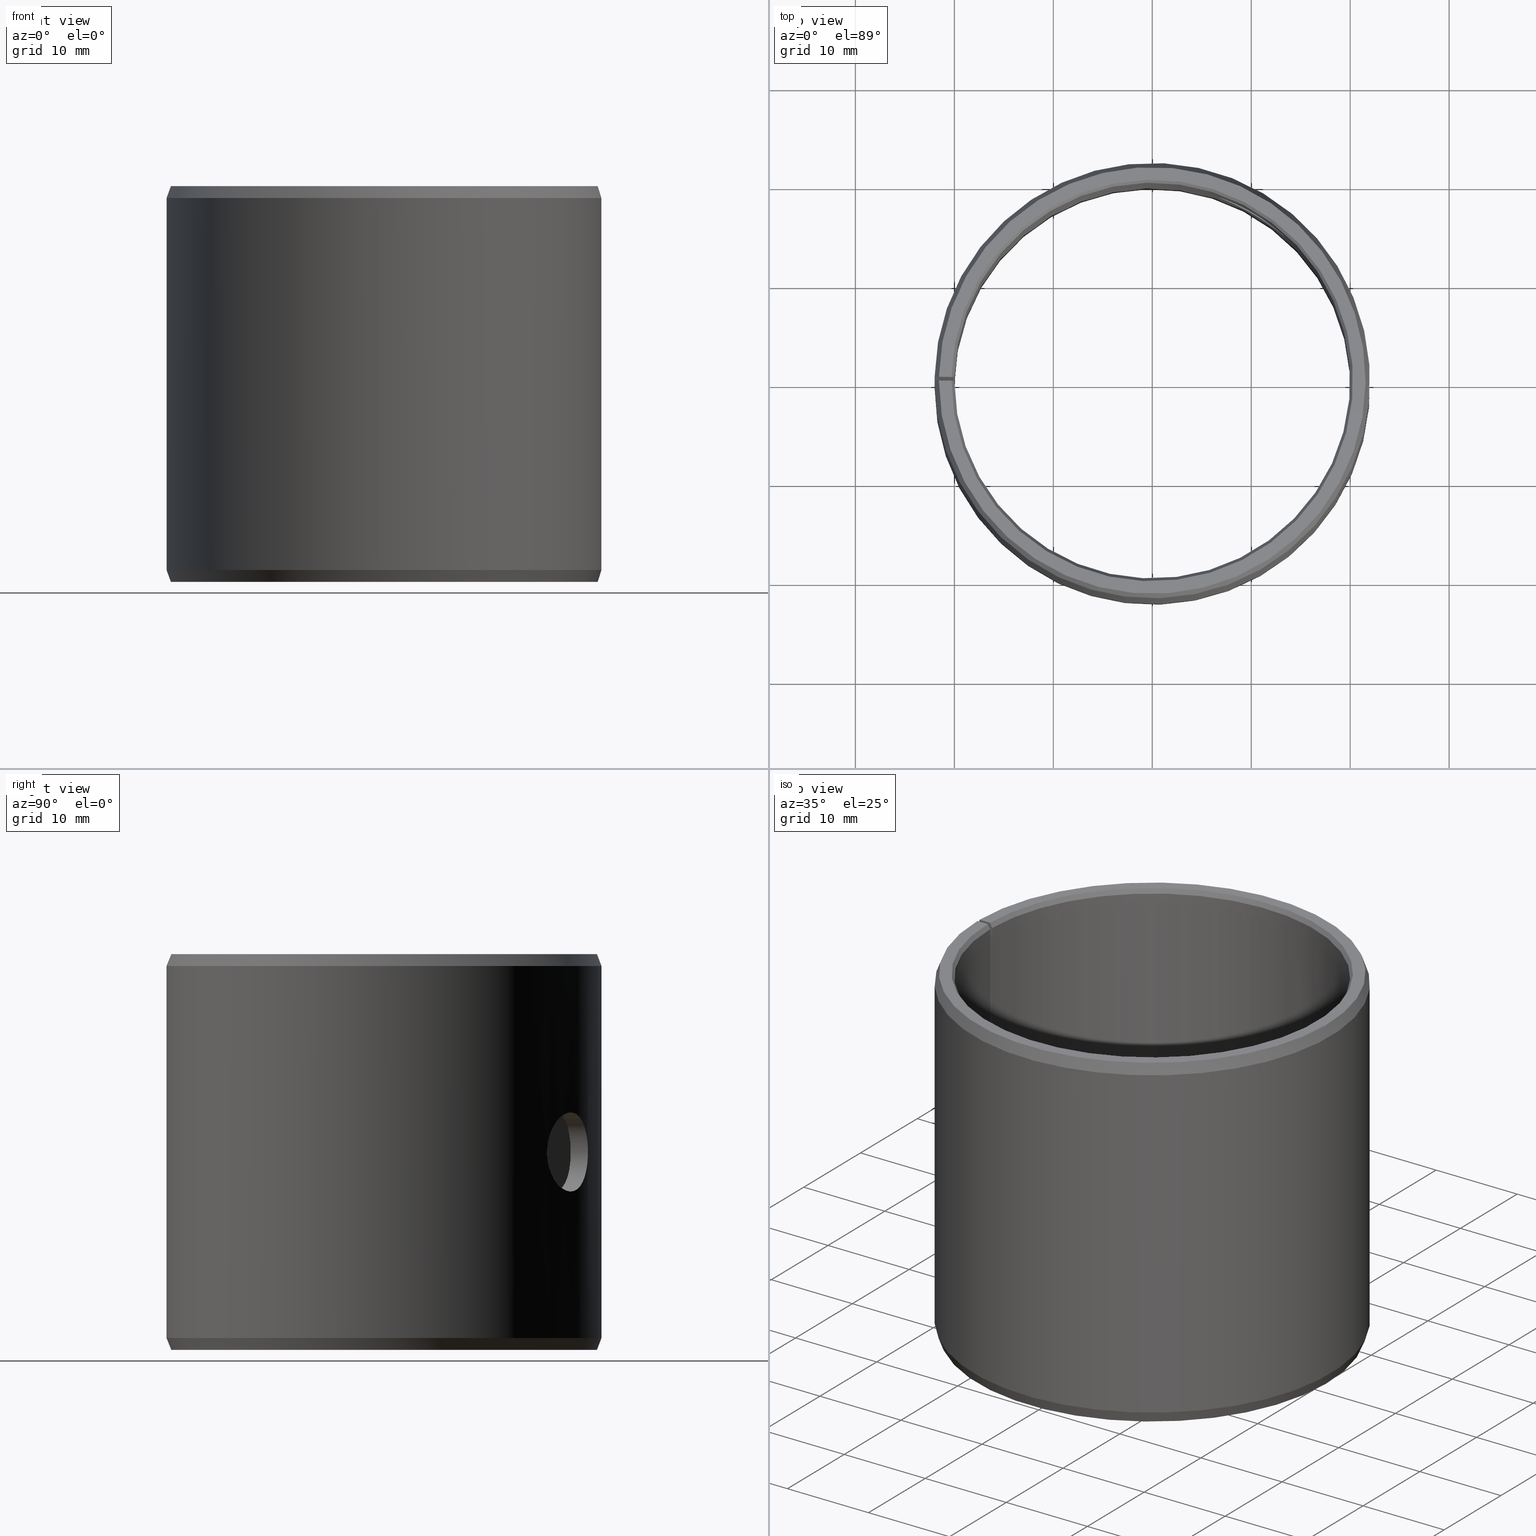
[diagram: canonical four-view strip — front | top / right | iso, engineering-drawing reading convention]
A machine part, canonical four-view strip (front | top / right | iso — engineering-drawing reading convention). The complete STEP part file that produces these views, byte-faithful:
ISO-10303-21;
HEADER;
FILE_DESCRIPTION(('STEP AP203'),'1');
FILE_NAME('440-POM4040LMB.stp','2016-09-21T00:24:56',(' '),(' '),'Spatial InterOp 3D',' ',' ');
FILE_SCHEMA(('CONFIG_CONTROL_DESIGN'));
ENDSEC;
DATA;
#1=DESIGN_CONTEXT('',#51,'design');
#2=APPLICATION_PROTOCOL_DEFINITION('INTERNATIONAL STANDARD','config_control_design',1994,#51);
#3=PRODUCT_CATEGORY_RELATIONSHIP('NONE','NONE',#52,#53);
#4=DATE_AND_TIME(#54,#55);
#5=DATE_TIME_ROLE('creation_date');
#6=DATE_TIME_ROLE('classification_date');
#7=PERSON_AND_ORGANIZATION_ROLE('creator');
#8=PERSON_AND_ORGANIZATION_ROLE('design_supplier');
#9=PERSON_AND_ORGANIZATION_ROLE('classification_officer');
#10=PERSON_AND_ORGANIZATION_ROLE('design_owner');
#11=APPROVAL_PERSON_ORGANIZATION(#56,#57,#58);
#12=APPROVAL_DATE_TIME(#4,#57);
#13=CC_DESIGN_APPROVAL(#57,(#59,#60,#61));
#14=CC_DESIGN_DATE_AND_TIME_ASSIGNMENT(#4,#5,(#61));
#15=CC_DESIGN_DATE_AND_TIME_ASSIGNMENT(#4,#6,(#59));
#16=CC_DESIGN_PERSON_AND_ORGANIZATION_ASSIGNMENT(#56,#10,(#62));
#17=CC_DESIGN_PERSON_AND_ORGANIZATION_ASSIGNMENT(#56,#7,(#61));
#18=CC_DESIGN_PERSON_AND_ORGANIZATION_ASSIGNMENT(#56,#7,(#60));
#19=CC_DESIGN_PERSON_AND_ORGANIZATION_ASSIGNMENT(#56,#8,(#60));
#20=CC_DESIGN_SECURITY_CLASSIFICATION(#59,(#60));
#21=CC_DESIGN_PERSON_AND_ORGANIZATION_ASSIGNMENT(#56,#9,(#59));
#22=SHAPE_DEFINITION_REPRESENTATION(#63,#64);
#23=DESIGN_CONTEXT('',#65,'design');
#24=APPLICATION_PROTOCOL_DEFINITION('INTERNATIONAL STANDARD','config_control_design',1994,#65);
#25=PRODUCT_CATEGORY_RELATIONSHIP('NONE','NONE',#66,#67);
#26=DATE_AND_TIME(#68,#69);
#27=DATE_TIME_ROLE('creation_date');
#28=DATE_TIME_ROLE('classification_date');
#29=PERSON_AND_ORGANIZATION_ROLE('creator');
#30=PERSON_AND_ORGANIZATION_ROLE('design_supplier');
#31=PERSON_AND_ORGANIZATION_ROLE('classification_officer');
#32=PERSON_AND_ORGANIZATION_ROLE('design_owner');
#33=APPROVAL_PERSON_ORGANIZATION(#70,#71,#72);
#34=APPROVAL_DATE_TIME(#26,#71);
#35=CC_DESIGN_APPROVAL(#71,(#73,#74,#75));
#36=CC_DESIGN_DATE_AND_TIME_ASSIGNMENT(#26,#27,(#75));
#37=CC_DESIGN_DATE_AND_TIME_ASSIGNMENT(#26,#28,(#73));
#38=CC_DESIGN_PERSON_AND_ORGANIZATION_ASSIGNMENT(#70,#32,(#76));
#39=CC_DESIGN_PERSON_AND_ORGANIZATION_ASSIGNMENT(#70,#29,(#75));
#40=CC_DESIGN_PERSON_AND_ORGANIZATION_ASSIGNMENT(#70,#29,(#74));
#41=CC_DESIGN_PERSON_AND_ORGANIZATION_ASSIGNMENT(#70,#30,(#74));
#42=CC_DESIGN_SECURITY_CLASSIFICATION(#73,(#74));
#43=CC_DESIGN_PERSON_AND_ORGANIZATION_ASSIGNMENT(#70,#31,(#73));
#44=CONTEXT_DEPENDENT_SHAPE_REPRESENTATION(#77,#78);
#45=SHAPE_DEFINITION_REPRESENTATION(#79,#80);
#46=SHAPE_REPRESENTATION_RELATIONSHIP('NONE','NONE',#80,#81);
#47= (GEOMETRIC_REPRESENTATION_CONTEXT(3)GLOBAL_UNCERTAINTY_ASSIGNED_CONTEXT((#84))GLOBAL_UNIT_ASSIGNED_CONTEXT((#86,#87,#88))REPRESENTATION_CONTEXT('NONE','WORKSPACE'));
#51=APPLICATION_CONTEXT('CONFIGURATION CONTROLLED 3D DESIGNS OF MECHANICAL PARTS AND ASSEMBLIES');
#52=PRODUCT_CATEGORY('part','NONE');
#53=PRODUCT_RELATED_PRODUCT_CATEGORY('detail',' ',(#62));
#54=CALENDAR_DATE(2016,21,8);
#55=LOCAL_TIME(2,24,56.0,#90);
#56=PERSON_AND_ORGANIZATION(#91,#92);
#57=APPROVAL(#93,'SOLID MODEL');
#58=APPROVAL_ROLE('APPROVED');
#59=SECURITY_CLASSIFICATION('','',#94);
#60=PRODUCT_DEFINITION_FORMATION_WITH_SPECIFIED_SOURCE(' ','NONE',#62,.NOT_KNOWN.);
#61=PRODUCT_DEFINITION('NONE','NONE',#60,#1);
#62=PRODUCT('','','PART--DESC',(#95));
#63=PRODUCT_DEFINITION_SHAPE('NONE','NONE',#61);
#64=SHAPE_REPRESENTATION('',(#96,#97),#98);
#65=APPLICATION_CONTEXT('CONFIGURATION CONTROLLED 3D DESIGNS OF MECHANICAL PARTS AND ASSEMBLIES');
#66=PRODUCT_CATEGORY('part','NONE');
#67=PRODUCT_RELATED_PRODUCT_CATEGORY('detail',' ',(#76));
#68=CALENDAR_DATE(2016,21,8);
#69=LOCAL_TIME(2,24,56.0,#99);
#70=PERSON_AND_ORGANIZATION(#100,#101);
#71=APPROVAL(#102,'SOLID MODEL');
#72=APPROVAL_ROLE('APPROVED');
#73=SECURITY_CLASSIFICATION('','',#103);
#74=PRODUCT_DEFINITION_FORMATION_WITH_SPECIFIED_SOURCE(' ','NONE',#76,.NOT_KNOWN.);
#75=PRODUCT_DEFINITION('440-POM4040LMB','440-POM4040LMB',#74,#23);
#76=PRODUCT('440-POM4040LMB','440-POM4040LMB','PART-440-POM4040LMB-DESC',(#104));
#77=(REPRESENTATION_RELATIONSHIP('','',#80,#64)REPRESENTATION_RELATIONSHIP_WITH_TRANSFORMATION(#107)SHAPE_REPRESENTATION_RELATIONSHIP());
#78=PRODUCT_DEFINITION_SHAPE('NAUO-PROD-DEF','NAUO-PROD-DEF',#109);
#79=PRODUCT_DEFINITION_SHAPE('NONE','NONE',#75);
#80=SHAPE_REPRESENTATION('440-POM4040LMB',(#96),#98);
#81=ADVANCED_BREP_SHAPE_REPRESENTATION('',(#110),#47);
#84=UNCERTAINTY_MEASURE_WITH_UNIT(LENGTH_MEASURE(1.0E-006),#86,'','');
#86= (CONVERSION_BASED_UNIT('METRE',#113)LENGTH_UNIT()NAMED_UNIT(#116));
#87= (NAMED_UNIT(#118)PLANE_ANGLE_UNIT()SI_UNIT($,.RADIAN.));
#88= (NAMED_UNIT(#118)SOLID_ANGLE_UNIT()SI_UNIT($,.STERADIAN.));
#90=COORDINATED_UNIVERSAL_TIME_OFFSET(1,0,.AHEAD.);
#91=PERSON('','UNSPECIFIED',$,$,$,$);
#92=ORGANIZATION('UNSPECIFIED','UNSPECIFIED','UNSPECIFIED');
#93=APPROVAL_STATUS('approved');
#94=SECURITY_CLASSIFICATION_LEVEL('unclassified');
#95=MECHANICAL_CONTEXT('',#51,'mechanical');
#96=AXIS2_PLACEMENT_3D('',#124,#125,#126);
#97=AXIS2_PLACEMENT_3D('',#127,#128,#129);
#98= (GEOMETRIC_REPRESENTATION_CONTEXT(3)GLOBAL_UNCERTAINTY_ASSIGNED_CONTEXT((#132))GLOBAL_UNIT_ASSIGNED_CONTEXT((#134,#135,#136))REPRESENTATION_CONTEXT('NONE','WORKSPACE'));
#99=COORDINATED_UNIVERSAL_TIME_OFFSET(1,0,.AHEAD.);
#100=PERSON('','UNSPECIFIED',$,$,$,$);
#101=ORGANIZATION('UNSPECIFIED','UNSPECIFIED','UNSPECIFIED');
#102=APPROVAL_STATUS('approved');
#103=SECURITY_CLASSIFICATION_LEVEL('unclassified');
#104=MECHANICAL_CONTEXT('',#65,'mechanical');
#107=ITEM_DEFINED_TRANSFORMATION('','',#96,#97);
#109=NEXT_ASSEMBLY_USAGE_OCCURRENCE('440-POM4040LMB','440-POM4040LMB','440-POM4040LMB',#61,#75,$);
#110=MANIFOLD_SOLID_BREP('',#138);
#113=LENGTH_MEASURE_WITH_UNIT(LENGTH_MEASURE(1.0),#139);
#116=DIMENSIONAL_EXPONENTS(1.0,0.0,0.0,0.0,0.0,0.0,0.0);
#118=DIMENSIONAL_EXPONENTS(0.0,0.0,0.0,0.0,0.0,0.0,0.0);
#124=CARTESIAN_POINT('',(0.0,0.0,0.0));
#125=DIRECTION('',(0.0,0.0,1.0));
#126=DIRECTION('',(1.0,0.0,0.0));
#127=CARTESIAN_POINT('',(0.0,0.0,0.0));
#128=DIRECTION('',(5.48707263966374E-016,-5.48707263966376E-016,1.0));
#129=DIRECTION('',(1.39349996950756E-015,1.0,5.48707263966375E-016));
#132=UNCERTAINTY_MEASURE_WITH_UNIT(LENGTH_MEASURE(1.0E-006),#134,'','');
#134= (CONVERSION_BASED_UNIT('METRE',#142)LENGTH_UNIT()NAMED_UNIT(#145));
#135= (NAMED_UNIT(#147)PLANE_ANGLE_UNIT()SI_UNIT($,.RADIAN.));
#136= (NAMED_UNIT(#147)SOLID_ANGLE_UNIT()SI_UNIT($,.STERADIAN.));
#138=CLOSED_SHELL('',(#153,#154,#155,#156,#157,#158,#159,#160,#161,#162,#163));
#139= (NAMED_UNIT(#116)LENGTH_UNIT()SI_UNIT($,.METRE.));
#142=LENGTH_MEASURE_WITH_UNIT(LENGTH_MEASURE(1.0),#165);
#145=DIMENSIONAL_EXPONENTS(1.0,0.0,0.0,0.0,0.0,0.0,0.0);
#147=DIMENSIONAL_EXPONENTS(0.0,0.0,0.0,0.0,0.0,0.0,0.0);
#153=ADVANCED_FACE('',(#166),#167,.F.);
#154=ADVANCED_FACE('',(#168),#169,.T.);
#155=ADVANCED_FACE('',(#170),#171,.T.);
#156=ADVANCED_FACE('',(#172),#173,.T.);
#157=ADVANCED_FACE('',(#174),#175,.T.);
#158=ADVANCED_FACE('',(#176),#177,.F.);
#159=ADVANCED_FACE('',(#178),#179,.T.);
#160=ADVANCED_FACE('',(#180),#181,.F.);
#161=ADVANCED_FACE('',(#182,#183),#184,.F.);
#162=ADVANCED_FACE('',(#185,#186),#187,.T.);
#163=ADVANCED_FACE('',(#188,#189),#190,.F.);
#165= (NAMED_UNIT(#145)LENGTH_UNIT()SI_UNIT($,.METRE.));
#166=FACE_OUTER_BOUND('',#192,.T.);
#167=CONICAL_SURFACE('',#193,0.02,0.523598775598284);
#168=FACE_OUTER_BOUND('',#194,.T.);
#169=PLANE('',#195);
#170=FACE_OUTER_BOUND('',#196,.T.);
#171=CONICAL_SURFACE('',#197,0.0215632357188805,0.349065850398871);
#172=FACE_OUTER_BOUND('',#198,.T.);
#173=CONICAL_SURFACE('',#199,0.022,0.349065850398866);
#174=FACE_OUTER_BOUND('',#200,.T.);
#175=PLANE('',#201);
#176=FACE_OUTER_BOUND('',#202,.T.);
#177=CONICAL_SURFACE('',#203,0.0202886751345948,0.523598775598283);
#178=FACE_OUTER_BOUND('',#204,.T.);
#179=PLANE('',#205);
#180=FACE_OUTER_BOUND('',#206,.T.);
#181=PLANE('',#207);
#182=FACE_OUTER_BOUND('',#208,.T.);
#183=FACE_BOUND('',#209,.T.);
#184=CYLINDRICAL_SURFACE('',#210,0.02);
#185=FACE_OUTER_BOUND('',#211,.T.);
#186=FACE_BOUND('',#212,.T.);
#187=CYLINDRICAL_SURFACE('',#213,0.022);
#188=FACE_OUTER_BOUND('',#214,.T.);
#189=FACE_OUTER_BOUND('',#215,.T.);
#190=CYLINDRICAL_SURFACE('',#216,0.004);
#192=EDGE_LOOP('',(#217,#218,#219,#220));
#193=AXIS2_PLACEMENT_3D('',#221,#222,#223);
#194=EDGE_LOOP('',(#224,#225,#226,#227));
#195=AXIS2_PLACEMENT_3D('',#228,#229,#230);
#196=EDGE_LOOP('',(#231,#232,#233,#234));
#197=AXIS2_PLACEMENT_3D('',#235,#236,#237);
#198=EDGE_LOOP('',(#238,#239,#240,#241));
#199=AXIS2_PLACEMENT_3D('',#242,#243,#244);
#200=EDGE_LOOP('',(#245,#246,#247,#248));
#201=AXIS2_PLACEMENT_3D('',#249,#250,#251);
#202=EDGE_LOOP('',(#252,#253,#254,#255));
#203=AXIS2_PLACEMENT_3D('',#256,#257,#258);
#204=EDGE_LOOP('',(#259,#260,#261,#262,#263,#264,#265,#266));
#205=AXIS2_PLACEMENT_3D('',#267,#268,#269);
#206=EDGE_LOOP('',(#270,#271,#272,#273,#274,#275,#276,#277));
#207=AXIS2_PLACEMENT_3D('',#278,#279,#280);
#208=EDGE_LOOP('',(#281,#282,#283,#284));
#209=EDGE_LOOP('',(#285));
#210=AXIS2_PLACEMENT_3D('',#286,#287,#288);
#211=EDGE_LOOP('',(#289,#290,#291,#292));
#212=EDGE_LOOP('',(#293));
#213=AXIS2_PLACEMENT_3D('',#294,#295,#296);
#214=EDGE_LOOP('',(#297));
#215=EDGE_LOOP('',(#298));
#216=AXIS2_PLACEMENT_3D('',#299,#300,#301);
#217=ORIENTED_EDGE('',*,*,#302,.T.);
#218=ORIENTED_EDGE('',*,*,#303,.F.);
#219=ORIENTED_EDGE('',*,*,#304,.F.);
#220=ORIENTED_EDGE('',*,*,#305,.T.);
#221=CARTESIAN_POINT('',(-6.93889390390723E-018,-6.93889390390723E-018,0.0005));
#222=DIRECTION('',(6.12323399573677E-017,-0.0,-1.0));
#223=DIRECTION('',(-1.0,0.0,-6.12323399573677E-017));
#224=ORIENTED_EDGE('',*,*,#306,.T.);
#225=ORIENTED_EDGE('',*,*,#307,.F.);
#226=ORIENTED_EDGE('',*,*,#302,.F.);
#227=ORIENTED_EDGE('',*,*,#308,.T.);
#228=CARTESIAN_POINT('',(0.00035408620452295,0.0202855850711014,8.34833156213692E-019));
#229=DIRECTION('',(6.12323399573677E-017,0.0,-1.0));
#230=DIRECTION('',(-1.0,0.0,-6.12323399573677E-017));
#231=ORIENTED_EDGE('',*,*,#309,.T.);
#232=ORIENTED_EDGE('',*,*,#310,.F.);
#233=ORIENTED_EDGE('',*,*,#306,.F.);
#234=ORIENTED_EDGE('',*,*,#311,.T.);
#235=CARTESIAN_POINT('',(-6.93889390390723E-018,-6.93889390390723E-018,8.67361737988404E-019));
#236=DIRECTION('',(-6.12323399573677E-017,0.0,1.0));
#237=DIRECTION('',(1.0,0.0,6.12323399573677E-017));
#238=ORIENTED_EDGE('',*,*,#312,.T.);
#239=ORIENTED_EDGE('',*,*,#313,.F.);
#240=ORIENTED_EDGE('',*,*,#314,.F.);
#241=ORIENTED_EDGE('',*,*,#315,.T.);
#242=CARTESIAN_POINT('',(-8.67361737988404E-018,-6.93889390390723E-018,0.0388));
#243=DIRECTION('',(6.12323399573677E-017,-0.0,-1.0));
#244=DIRECTION('',(-1.0,0.0,-6.12323399573677E-017));
#245=ORIENTED_EDGE('',*,*,#316,.T.);
#246=ORIENTED_EDGE('',*,*,#317,.T.);
#247=ORIENTED_EDGE('',*,*,#318,.F.);
#248=ORIENTED_EDGE('',*,*,#312,.F.);
#249=CARTESIAN_POINT('',(0.000376330353868845,0.0215599515336367,0.04));
#250=DIRECTION('',(-6.12323399573677E-017,0.0,1.0));
#251=DIRECTION('',(1.0,0.0,6.12323399573677E-017));
#252=ORIENTED_EDGE('',*,*,#319,.T.);
#253=ORIENTED_EDGE('',*,*,#320,.F.);
#254=ORIENTED_EDGE('',*,*,#317,.F.);
#255=ORIENTED_EDGE('',*,*,#321,.T.);
#256=CARTESIAN_POINT('',(-8.67361737988404E-018,-6.93889390390723E-018,0.04));
#257=DIRECTION('',(-6.12323399573677E-017,0.0,1.0));
#258=DIRECTION('',(1.0,0.0,6.12323399573677E-017));
#259=ORIENTED_EDGE('',*,*,#320,.T.);
#260=ORIENTED_EDGE('',*,*,#322,.T.);
#261=ORIENTED_EDGE('',*,*,#303,.T.);
#262=ORIENTED_EDGE('',*,*,#307,.T.);
#263=ORIENTED_EDGE('',*,*,#310,.T.);
#264=ORIENTED_EDGE('',*,*,#323,.T.);
#265=ORIENTED_EDGE('',*,*,#313,.T.);
#266=ORIENTED_EDGE('',*,*,#318,.T.);
#267=CARTESIAN_POINT('',(-6.93889390390723E-018,-0.014,0.0));
#268=DIRECTION('',(1.0,0.0,0.0));
#269=DIRECTION('',(0.0,0.0,-1.0));
#270=ORIENTED_EDGE('',*,*,#321,.F.);
#271=ORIENTED_EDGE('',*,*,#316,.F.);
#272=ORIENTED_EDGE('',*,*,#315,.F.);
#273=ORIENTED_EDGE('',*,*,#324,.F.);
#274=ORIENTED_EDGE('',*,*,#311,.F.);
#275=ORIENTED_EDGE('',*,*,#308,.F.);
#276=ORIENTED_EDGE('',*,*,#305,.F.);
#277=ORIENTED_EDGE('',*,*,#325,.F.);
#278=CARTESIAN_POINT('',(-0.000244333690121977,-0.0139978677321895,-1.49611235765866E-020));
#279=DIRECTION('',(0.999847695156391,-0.0174524064372836,-9.3259819610035E-021));
#280=DIRECTION('',(9.32598196100733E-021,1.0686516840419E-018,-1.0));
#281=ORIENTED_EDGE('',*,*,#304,.T.);
#282=ORIENTED_EDGE('',*,*,#322,.F.);
#283=ORIENTED_EDGE('',*,*,#319,.F.);
#284=ORIENTED_EDGE('',*,*,#325,.T.);
#285=ORIENTED_EDGE('',*,*,#326,.T.);
#286=CARTESIAN_POINT('',(-6.93889390390723E-018,-6.93889390390723E-018,0.0));
#287=DIRECTION('',(6.12323399573677E-017,0.0,-1.0));
#288=DIRECTION('',(-1.0,0.0,-6.12323399573677E-017));
#289=ORIENTED_EDGE('',*,*,#314,.T.);
#290=ORIENTED_EDGE('',*,*,#323,.F.);
#291=ORIENTED_EDGE('',*,*,#309,.F.);
#292=ORIENTED_EDGE('',*,*,#324,.T.);
#293=ORIENTED_EDGE('',*,*,#327,.T.);
#294=CARTESIAN_POINT('',(-6.93889390390723E-018,-6.93889390390723E-018,0.0));
#295=DIRECTION('',(6.12323399573677E-017,0.0,-1.0));
#296=DIRECTION('',(-1.0,0.0,-6.12323399573677E-017));
#297=ORIENTED_EDGE('',*,*,#326,.F.);
#298=ORIENTED_EDGE('',*,*,#327,.F.);
#299=CARTESIAN_POINT('',(0.0145718441119665,-0.00875564727342002,0.02));
#300=DIRECTION('',(0.857167300703911,-0.515038074907061,0.0));
#301=DIRECTION('',(-0.515038074907061,-0.857167300703911,0.0));
#302=EDGE_CURVE('',#328,#329,#330,.T.);
#303=EDGE_CURVE('',#331,#329,#332,.T.);
#304=EDGE_CURVE('',#333,#331,#334,.T.);
#305=EDGE_CURVE('',#333,#328,#335,.T.);
#306=EDGE_CURVE('',#336,#337,#338,.T.);
#307=EDGE_CURVE('',#329,#337,#339,.T.);
#308=EDGE_CURVE('',#328,#336,#340,.T.);
#309=EDGE_CURVE('',#341,#342,#343,.T.);
#310=EDGE_CURVE('',#337,#342,#344,.T.);
#311=EDGE_CURVE('',#336,#341,#345,.T.);
#312=EDGE_CURVE('',#346,#347,#348,.T.);
#313=EDGE_CURVE('',#349,#347,#350,.T.);
#314=EDGE_CURVE('',#351,#349,#352,.T.);
#315=EDGE_CURVE('',#351,#346,#353,.T.);
#316=EDGE_CURVE('',#346,#354,#355,.T.);
#317=EDGE_CURVE('',#354,#356,#357,.T.);
#318=EDGE_CURVE('',#347,#356,#358,.T.);
#319=EDGE_CURVE('',#359,#360,#361,.T.);
#320=EDGE_CURVE('',#356,#360,#362,.T.);
#321=EDGE_CURVE('',#354,#359,#363,.T.);
#322=EDGE_CURVE('',#360,#331,#364,.T.);
#323=EDGE_CURVE('',#342,#349,#365,.T.);
#324=EDGE_CURVE('',#341,#351,#366,.T.);
#325=EDGE_CURVE('',#359,#333,#367,.T.);
#326=EDGE_CURVE('',#368,#368,#369,.T.);
#327=EDGE_CURVE('',#370,#370,#371,.T.);
#328=VERTEX_POINT('',#372);
#329=VERTEX_POINT('',#373);
#330=CIRCLE('',#374,0.0202886751345948);
#331=VERTEX_POINT('',#375);
#332=LINE('',#376,#377);
#333=VERTEX_POINT('',#378);
#334=CIRCLE('',#379,0.02);
#335=LINE('',#380,#381);
#336=VERTEX_POINT('',#382);
#337=VERTEX_POINT('',#383);
#338=CIRCLE('',#384,0.0215632357188805);
#339=LINE('',#385,#386);
#340=LINE('',#387,#388);
#341=VERTEX_POINT('',#389);
#342=VERTEX_POINT('',#390);
#343=CIRCLE('',#391,0.022);
#344=LINE('',#392,#393);
#345=LINE('',#394,#395);
#346=VERTEX_POINT('',#396);
#347=VERTEX_POINT('',#397);
#348=CIRCLE('',#398,0.0215632357188805);
#349=VERTEX_POINT('',#399);
#350=LINE('',#400,#401);
#351=VERTEX_POINT('',#402);
#352=CIRCLE('',#403,0.022);
#353=LINE('',#404,#405);
#354=VERTEX_POINT('',#406);
#355=LINE('',#407,#408);
#356=VERTEX_POINT('',#409);
#357=CIRCLE('',#410,0.0202886751345948);
#358=LINE('',#411,#412);
#359=VERTEX_POINT('',#413);
#360=VERTEX_POINT('',#414);
#361=CIRCLE('',#415,0.02);
#362=LINE('',#416,#417);
#363=LINE('',#418,#419);
#364=LINE('',#420,#421);
#365=LINE('',#422,#423);
#366=LINE('',#424,#425);
#367=LINE('',#426,#427);
#368=VERTEX_POINT('',#428);
#369=B_SPLINE_CURVE_WITH_KNOTS('',3,(#429,#430,#431,#432,#433,#434,#435,#436,#437,#438,#439,#440,#441,#442,#443,#444,#445,#446,#447,#448,#449,#450,#451,#452,#453,#454,#455,#456,#457,#458,#459,#460,#461,#462,#463,#464,#465,#466,#467,#468,#469,#470,#471,#472,#473,#474,#475,#476,#477,#478,#479,#480,#481,#482,#483,#484,#485,#486,#487,#488,#489,#490,#491,#492,#493,#494),.UNSPECIFIED.,.T.,.F.,(2,2,2,2,2,2,2,2,2,2,2,2,2,2,2,2,2,2,2,2,2,2,2,2,2,2,2,2,2,2,2,2,2,2,2),(-0.000783488712854397,0.0,0.000783488712854403,0.00156697742570881,0.00235046613856321,0.00313395485141761,0.00391744356427201,0.00470093227712641,0.00548442098998081,0.00626790970283521,0.00705139841568961,0.00783488712854401,0.00861837584139841,0.00940186455425281,0.0101853532671072,0.0109688419799616,0.011752330692816,0.0125358194056704,0.0133193081185248,0.0141027968313792,0.0148862855442336,0.015669774257088,0.0164532629699424,0.0172367516827968,0.0180202403956512,0.0188037291085056,0.01958721782136,0.0203707065342144,0.0211541952470688,0.0219376839599232,0.0227211726727776,0.023504661385632,0.0242881500984864,0.0250716388113408,0.0258551275241952),.UNSPECIFIED.);
#370=VERTEX_POINT('',#495);
#371=B_SPLINE_CURVE_WITH_KNOTS('',3,(#496,#497,#498,#499,#500,#501,#502,#503,#504,#505,#506,#507,#508,#509,#510,#511,#512,#513,#514,#515,#516,#517,#518,#519,#520,#521,#522,#523,#524,#525,#526,#527,#528,#529,#530,#531,#532,#533,#534,#535,#536,#537,#538,#539,#540,#541,#542,#543,#544,#545,#546,#547,#548,#549,#550,#551,#552,#553,#554,#555,#556,#557,#558,#559,#560,#561),.UNSPECIFIED.,.T.,.F.,(2,2,2,2,2,2,2,2,2,2,2,2,2,2,2,2,2,2,2,2,2,2,2,2,2,2,2,2,2,2,2,2,2,2,2),(-0.000783143181487496,0.0,0.000783143181487496,0.00156628636297499,0.00234942954446249,0.00313257272594999,0.00391571590743748,0.00469885908892498,0.00548200227041248,0.00626514545189997,0.00704828863338747,0.00783143181487496,0.00861457499636246,0.00939771817784996,0.0101808613593375,0.010964004540825,0.0117471477223124,0.0125302909037999,0.0133134340852874,0.0140965772667749,0.0148797204482624,0.0156628636297499,0.0164460068112374,0.0172291499927249,0.0180122931742124,0.0187954363556999,0.0195785795371874,0.0203617227186749,0.0211448659001624,0.0219280090816499,0.0227111522631374,0.0234942954446249,0.0242774386261124,0.0250605818075999,0.0258437249890874),.UNSPECIFIED.);
#372=CARTESIAN_POINT('',(0.00035408620452295,0.0202855850711014,7.80623047589417E-019));
#373=CARTESIAN_POINT('',(-6.93889390390723E-018,0.0202886751345948,7.58941520739853E-019));
#374=AXIS2_PLACEMENT_3D('',#562,#563,#564);
#375=CARTESIAN_POINT('',(-6.93889390390723E-018,0.02,0.0005));
#376=CARTESIAN_POINT('',(-6.93889390390723E-018,0.02,0.0005));
#377=VECTOR('',#565,1.0);
#378=CARTESIAN_POINT('',(0.000349048128745664,0.0199969539031278,0.0005));
#379=AXIS2_PLACEMENT_3D('',#566,#567,#568);
#380=CARTESIAN_POINT('',(0.000349048128745664,0.0199969539031278,0.0005));
#381=VECTOR('',#569,1.0);
#382=CARTESIAN_POINT('',(0.000376330353868847,0.0215599515336367,8.90405326152778E-019));
#383=CARTESIAN_POINT('',(-6.93889390390723E-018,0.0215632357188805,8.67361737988404E-019));
#384=AXIS2_PLACEMENT_3D('',#570,#571,#572);
#385=CARTESIAN_POINT('',(-6.93889390390723E-018,0.0202886751345948,8.03470082629716E-019));
#386=VECTOR('',#573,1.0);
#387=CARTESIAN_POINT('',(0.00035408620452295,0.0202855850711014,8.2515160947928E-019));
#388=VECTOR('',#574,1.0);
#389=CARTESIAN_POINT('',(0.000383952941620232,0.0219966492934406,0.0012));
#390=CARTESIAN_POINT('',(-6.93889390390723E-018,0.022,0.0012));
#391=AXIS2_PLACEMENT_3D('',#575,#576,#577);
#392=CARTESIAN_POINT('',(-6.93889390390723E-018,0.0215632357188805,8.67361737988404E-019));
#393=VECTOR('',#578,1.0);
#394=CARTESIAN_POINT('',(0.000376330353868847,0.0215599515336367,8.90405326152778E-019));
#395=VECTOR('',#579,1.0);
#396=CARTESIAN_POINT('',(0.000376330353868845,0.0215599515336367,0.04));
#397=CARTESIAN_POINT('',(-8.67361737988404E-018,0.0215632357188805,0.04));
#398=AXIS2_PLACEMENT_3D('',#580,#581,#582);
#399=CARTESIAN_POINT('',(-8.67361737988404E-018,0.022,0.0388));
#400=CARTESIAN_POINT('',(-8.67361737988404E-018,0.022,0.0388));
#401=VECTOR('',#583,1.0);
#402=CARTESIAN_POINT('',(0.00038395294162023,0.0219966492934406,0.0388));
#403=AXIS2_PLACEMENT_3D('',#584,#585,#586);
#404=CARTESIAN_POINT('',(0.00038395294162023,0.0219966492934406,0.0388));
#405=VECTOR('',#587,1.0);
#406=CARTESIAN_POINT('',(0.000354086204522949,0.0202855850711014,0.04));
#407=CARTESIAN_POINT('',(0.000376330353868845,0.0215599515336367,0.04));
#408=VECTOR('',#588,1.0);
#409=CARTESIAN_POINT('',(-8.67361737988404E-018,0.0202886751345948,0.04));
#410=AXIS2_PLACEMENT_3D('',#589,#590,#591);
#411=CARTESIAN_POINT('',(-8.67361737988404E-018,0.0215632357188805,0.04));
#412=VECTOR('',#592,1.0);
#413=CARTESIAN_POINT('',(0.000349048128745663,0.0199969539031278,0.0395));
#414=CARTESIAN_POINT('',(-8.67361737988404E-018,0.02,0.0395));
#415=AXIS2_PLACEMENT_3D('',#593,#594,#595);
#416=CARTESIAN_POINT('',(-8.67361737988404E-018,0.0202886751345948,0.04));
#417=VECTOR('',#596,1.0);
#418=CARTESIAN_POINT('',(0.000354086204522949,0.0202855850711014,0.04));
#419=VECTOR('',#597,1.0);
#420=CARTESIAN_POINT('',(-8.67361737988404E-018,0.02,0.0395));
#421=VECTOR('',#598,1.0);
#422=CARTESIAN_POINT('',(-6.93889390390723E-018,0.022,0.0012));
#423=VECTOR('',#599,1.0);
#424=CARTESIAN_POINT('',(0.000383952941620232,0.0219966492934406,0.0012));
#425=VECTOR('',#600,1.0);
#426=CARTESIAN_POINT('',(0.000349048128745663,0.0199969539031278,0.0395));
#427=VECTOR('',#601,1.0);
#428=CARTESIAN_POINT('',(0.0147368277877588,-0.0135213130558368,0.02));
#429=CARTESIAN_POINT('',(0.0147368277877588,-0.0135213130558368,0.0202649768366606));
#430=CARTESIAN_POINT('',(0.0147368277877588,-0.0135213130558368,0.0197350231633394));
#431=CARTESIAN_POINT('',(0.0147548588185547,-0.0135017349604381,0.0194746115155811));
#432=CARTESIAN_POINT('',(0.0148248897886548,-0.0134248034790695,0.0189625019382956));
#433=CARTESIAN_POINT('',(0.0148777620439247,-0.0133664749548795,0.0187081043687347));
#434=CARTESIAN_POINT('',(0.015013660018012,-0.0132136470748472,0.0182240496829964));
#435=CARTESIAN_POINT('',(0.015096101316406,-0.0131198088128641,0.0179945749427164));
#436=CARTESIAN_POINT('',(0.0152875369807863,-0.0128962347723045,0.0175602861250295));
#437=CARTESIAN_POINT('',(0.0153972162432063,-0.0127655896196565,0.0173551958955521));
#438=CARTESIAN_POINT('',(0.01563180601329,-0.0124772267407629,0.0169872845563086));
#439=CARTESIAN_POINT('',(0.0157576702396287,-0.0123184483584925,0.0168219438816031));
#440=CARTESIAN_POINT('',(0.0160246708287192,-0.0119690545229321,0.016529492696028));
#441=CARTESIAN_POINT('',(0.0161631152024075,-0.0117818459578267,0.0164056508608759));
#442=CARTESIAN_POINT('',(0.0164425741265372,-0.0113885882932689,0.0162059254306111));
#443=CARTESIAN_POINT('',(0.0165856226508623,-0.011179622130052,0.0161287501269086));
#444=CARTESIAN_POINT('',(0.016869042553392,-0.0107471965190648,0.0160257250547623));
#445=CARTESIAN_POINT('',(0.0170073640447639,-0.0105270130755956,0.0160001556034499));
#446=CARTESIAN_POINT('',(0.017276887997938,-0.010078570193812,0.0159998457990094));
#447=CARTESIAN_POINT('',(0.0174092679568996,-0.00984801587480328,0.0160259744036255));
#448=CARTESIAN_POINT('',(0.0176565324375543,-0.00939749380138671,0.016128316406424));
#449=CARTESIAN_POINT('',(0.0177725068907729,-0.0091759022486153,0.0162040304964613));
#450=CARTESIAN_POINT('',(0.0179904432382571,-0.00874088870480353,0.0164049855142014));
#451=CARTESIAN_POINT('',(0.0180913225134225,-0.0085294446780273,0.016529925083976));
#452=CARTESIAN_POINT('',(0.0182726691939624,-0.00813369149453143,0.0168191086026926));
#453=CARTESIAN_POINT('',(0.0183545876534978,-0.00794634405053023,0.0169851821852114));
#454=CARTESIAN_POINT('',(0.0185005761833137,-0.00760026003402093,0.0173568814974547));
#455=CARTESIAN_POINT('',(0.0185631023485181,-0.00744532049031294,0.0175581064867447));
#456=CARTESIAN_POINT('',(0.0186704321776277,-0.00717192640129805,0.0179906117354856));
#457=CARTESIAN_POINT('',(0.0187155607881087,-0.00705253189640114,0.0182247654896944));
#458=CARTESIAN_POINT('',(0.0187865809005554,-0.00686110776988901,0.0187081663927967));
#459=CARTESIAN_POINT('',(0.0188128202513417,-0.00678826558198345,0.0189574781197062));
#460=CARTESIAN_POINT('',(0.0188481938548091,-0.00668942029120389,0.0194714901600617));
#461=CARTESIAN_POINT('',(0.0188570961112188,-0.00666407730027469,0.019736980832904));
#462=CARTESIAN_POINT('',(0.018857168437677,-0.00666387263720272,0.0202597645692136));
#463=CARTESIAN_POINT('',(0.0188486220073478,-0.00668821368918649,0.0205200351588204));
#464=CARTESIAN_POINT('',(0.018813264383158,-0.00678703449066663,0.0210382667522375));
#465=CARTESIAN_POINT('',(0.0187868153247065,-0.00686045681838141,0.0212896275802896));
#466=CARTESIAN_POINT('',(0.0187162312261579,-0.00705074368350564,0.0217712737932063));
#467=CARTESIAN_POINT('',(0.018671433426763,-0.00716933434941554,0.0220048699439007));
#468=CARTESIAN_POINT('',(0.0185635975078861,-0.00744410026725574,0.0224403751213335));
#469=CARTESIAN_POINT('',(0.0185010864351698,-0.00759897521072943,0.0226413493827257));
#470=CARTESIAN_POINT('',(0.0183564989111846,-0.00794188713459098,0.0230104137630827));
#471=CARTESIAN_POINT('',(0.0182736408044104,-0.00813151267936323,0.0231790990725448));
#472=CARTESIAN_POINT('',(0.0180922044484154,-0.00852757790348447,0.0234689090258068));
#473=CARTESIAN_POINT('',(0.0179930363675113,-0.0087355524379243,0.0235921136850152));
#474=CARTESIAN_POINT('',(0.0177751332248424,-0.00917081637355227,0.0237940454768979));
#475=CARTESIAN_POINT('',(0.0176576076474414,-0.00939544743905922,0.0238710012810527));
#476=CARTESIAN_POINT('',(0.0174113300170644,-0.00984434494763255,0.0239734063996025));
#477=CARTESIAN_POINT('',(0.0172807942253257,-0.0100719369153565,0.0239998136980198));
#478=CARTESIAN_POINT('',(0.0170087883789147,-0.010524774589808,0.0240001843328627));
#479=CARTESIAN_POINT('',(0.0168703380948992,-0.0107451157161726,0.0239744616152448));
#480=CARTESIAN_POINT('',(0.0165891637613913,-0.0111743216746203,0.0238728165112523));
#481=CARTESIAN_POINT('',(0.0164449149356746,-0.0113852324409273,0.023795543599876));
#482=CARTESIAN_POINT('',(0.0161641778756178,-0.0117804116473452,0.0235953100730238));
#483=CARTESIAN_POINT('',(0.0160269833724549,-0.0119659443173579,0.0234726500905113));
#484=CARTESIAN_POINT('',(0.0157609535243587,-0.0123142341796013,0.0231820344319109));
#485=CARTESIAN_POINT('',(0.0156328480205379,-0.012475920741666,0.0230141515675283));
#486=CARTESIAN_POINT('',(0.0153983193988574,-0.0127642585086773,0.0226467304740491));
#487=CARTESIAN_POINT('',(0.0152903304125845,-0.0128929415868406,0.0224455244518676));
#488=CARTESIAN_POINT('',(0.0150967773925083,-0.0131190494796209,0.0220074760042898));
#489=CARTESIAN_POINT('',(0.015014267159697,-0.0132129541228296,0.021777556689022));
#490=CARTESIAN_POINT('',(0.0148789076701209,-0.0133651966517059,0.0212965252760537));
#491=CARTESIAN_POINT('',(0.0148257632082183,-0.0134238414301546,0.0210427887486843));
#492=CARTESIAN_POINT('',(0.0147548634108766,-0.0135017324508548,0.0205265048407942));
#493=CARTESIAN_POINT('',(0.0147368277877588,-0.0135213130558368,0.0202649768366606));
#494=CARTESIAN_POINT('',(0.0147368277877588,-0.0135213130558368,0.0197350231633394));
#495=CARTESIAN_POINT('',(0.0164832116264059,-0.0145706463301777,0.02));
#496=CARTESIAN_POINT('',(0.0164832116264059,-0.0145706463301777,0.0197351496906929));
#497=CARTESIAN_POINT('',(0.0164832116264058,-0.0145706463301777,0.0202648503093071));
#498=CARTESIAN_POINT('',(0.0165007922203708,-0.0145508260703122,0.0205251622067491));
#499=CARTESIAN_POINT('',(0.0165691298990779,-0.014472961604862,0.0210371156822544));
#500=CARTESIAN_POINT('',(0.0166207341600073,-0.0144139371658827,0.0212914496460818));
#501=CARTESIAN_POINT('',(0.0167535756167427,-0.0142593159966995,0.0217755682362726));
#502=CARTESIAN_POINT('',(0.0168342249639935,-0.0141644069047839,0.022005092029244));
#503=CARTESIAN_POINT('',(0.0170217603192587,-0.0139384801444182,0.0224394736495143));
#504=CARTESIAN_POINT('',(0.0171293711168049,-0.0138064877587962,0.0226447052538363));
#505=CARTESIAN_POINT('',(0.0173599083670454,-0.013515474115946,0.0230128029697214));
#506=CARTESIAN_POINT('',(0.0174837557700863,-0.0133553932541377,0.023178183676375));
#507=CARTESIAN_POINT('',(0.0177469232667903,-0.0130036517703047,0.0234706254426348));
#508=CARTESIAN_POINT('',(0.0178837313304818,-0.0128152367302046,0.023594544595303));
#509=CARTESIAN_POINT('',(0.0181603114118631,-0.0124201943695015,0.023794225821988));
#510=CARTESIAN_POINT('',(0.0183021107450861,-0.0122106322407033,0.0238713306132433));
#511=CARTESIAN_POINT('',(0.0185839166479724,-0.0117773018754005,0.0239743061354708));
#512=CARTESIAN_POINT('',(0.0187217908055454,-0.0115569423212521,0.0239998471774273));
#513=CARTESIAN_POINT('',(0.018991172676394,-0.0111087230210648,0.0240001514682181));
#514=CARTESIAN_POINT('',(0.0191238945455463,-0.0108785404612039,0.0239740530286047));
#515=CARTESIAN_POINT('',(0.01937268558632,-0.0104290478150604,0.0238717685730337));
#516=CARTESIAN_POINT('',(0.0194897839087334,-0.0102082029811458,0.0237960955611503));
#517=CARTESIAN_POINT('',(0.0197105755255259,-0.00977508554264033,0.0235952766913464));
#518=CARTESIAN_POINT('',(0.0198133104249374,-0.00956451962695219,0.0234702787306186));
#519=CARTESIAN_POINT('',(0.0199985347712013,-0.00917092758091256,0.0231810494640605));
#520=CARTESIAN_POINT('',(0.0200824670445974,-0.00898497310037473,0.0230151529159647));
#521=CARTESIAN_POINT('',(0.020232833917774,-0.00864104483656754,0.0226430864639846));
#522=CARTESIAN_POINT('',(0.0202974777933827,-0.00848727628499315,0.0224417174980967));
#523=CARTESIAN_POINT('',(0.0204087110412513,-0.0082162021120089,0.0220091166018946));
#524=CARTESIAN_POINT('',(0.0204556499945846,-0.0080979470178954,0.0217750149544805));
#525=CARTESIAN_POINT('',(0.0205297130087779,-0.0079083023704716,0.02129139065483));
#526=CARTESIAN_POINT('',(0.0205571437777756,-0.00783623448227296,0.0210420806438573));
#527=CARTESIAN_POINT('',(0.0205941411690446,-0.00773848051433647,0.020528363873268));
#528=CARTESIAN_POINT('',(0.0206034789732122,-0.00771340743197346,0.0202629166769863));
#529=CARTESIAN_POINT('',(0.0206035532515159,-0.00771320902239598,0.0197402721264132));
#530=CARTESIAN_POINT('',(0.0205945894878762,-0.00773728702455651,0.0194801569585405));
#531=CARTESIAN_POINT('',(0.0205576283499689,-0.00783496287796358,0.0189624089064897));
#532=CARTESIAN_POINT('',(0.0205299444807146,-0.00790769287593807,0.0187107370270379));
#533=CARTESIAN_POINT('',(0.0204563789592809,-0.00809609701496201,0.0182291369060092));
#534=CARTESIAN_POINT('',(0.0204098260314475,-0.00821344684539773,0.0179957201867439));
#535=CARTESIAN_POINT('',(0.0202979883170471,-0.00848606964366565,0.0175597747687284));
#536=CARTESIAN_POINT('',(0.0202333591452295,-0.00863977285230835,0.0173587071208716));
#537=CARTESIAN_POINT('',(0.0200846034367308,-0.00898015601359946,0.0169896481410786));
#538=CARTESIAN_POINT('',(0.0199995915111697,-0.00916862874154441,0.0168208463995231));
#539=CARTESIAN_POINT('',(0.0198141968713226,-0.00956268874106001,0.0165308622681452));
#540=CARTESIAN_POINT('',(0.0197132728871417,-0.00976964484825074,0.0164077010317899));
#541=CARTESIAN_POINT('',(0.019492594203149,-0.0102028358614273,0.016205949069181));
#542=CARTESIAN_POINT('',(0.0193737545601679,-0.0104270385981468,0.0161289039247809));
#543=CARTESIAN_POINT('',(0.0191259460157752,-0.0108749109737287,0.0160265602843506));
#544=CARTESIAN_POINT('',(0.018995297348443,-0.0111017337879936,0.0160002015611302));
#545=CARTESIAN_POINT('',(0.0187231887184215,-0.0115547400952863,0.0159998007400759));
#546=CARTESIAN_POINT('',(0.018585160995672,-0.0117752924410838,0.0160255274942246));
#547=CARTESIAN_POINT('',(0.0183057213277933,-0.0122051746393596,0.0161270666687465));
#548=CARTESIAN_POINT('',(0.018162750316762,-0.0124166522299629,0.0162042259827015));
#549=CARTESIAN_POINT('',(0.017884770908397,-0.0128138097856585,0.0164044949002063));
#550=CARTESIAN_POINT('',(0.0177493025849922,-0.0130003896303061,0.016527148792191));
#551=CARTESIAN_POINT('',(0.017487229491962,-0.0133508305917212,0.0168175472080746));
#552=CARTESIAN_POINT('',(0.0173609939161183,-0.0135140796145733,0.0169856724618444));
#553=CARTESIAN_POINT('',(0.0171304851349107,-0.0138051054551251,0.0173533092590707));
#554=CARTESIAN_POINT('',(0.0170246957468154,-0.0139349120134622,0.0175543205589722));
#555=CARTESIAN_POINT('',(0.0168350930759152,-0.0141633922214927,0.0179923155537983));
#556=CARTESIAN_POINT('',(0.0167541762205813,-0.0142586073548318,0.0182228127804311));
#557=CARTESIAN_POINT('',(0.0166218830187279,-0.0144126093904359,0.018703801205469));
#558=CARTESIAN_POINT('',(0.0165700609516065,-0.0144718981744799,0.018957107970222));
#559=CARTESIAN_POINT('',(0.016500796372854,-0.014550823886436,0.0194736241396767));
#560=CARTESIAN_POINT('',(0.0164832116264059,-0.0145706463301777,0.0197351496906929));
#561=CARTESIAN_POINT('',(0.0164832116264058,-0.0145706463301777,0.0202648503093071));
#562=CARTESIAN_POINT('',(-6.93889390390723E-018,-6.93889390390723E-018,7.58941520739853E-019));
#563=DIRECTION('',(6.12323399573677E-017,0.0,-1.0));
#564=DIRECTION('',(-1.0,0.0,-6.12323399573677E-017));
#565=DIRECTION('',(0.0,0.499999999999999,-0.866025403784439));
#566=CARTESIAN_POINT('',(-6.93889390390723E-018,-6.93889390390723E-018,0.0005));
#567=DIRECTION('',(6.12323399573677E-017,0.0,-1.0));
#568=DIRECTION('',(-1.0,0.0,-6.12323399573677E-017));
#569=DIRECTION('',(0.00872620321864172,0.499923847578192,-0.866025403784441));
#570=CARTESIAN_POINT('',(-6.93889390390723E-018,-6.93889390390723E-018,8.67361737988404E-019));
#571=DIRECTION('',(6.12323399573677E-017,0.0,-1.0));
#572=DIRECTION('',(-1.0,0.0,-6.12323399573677E-017));
#573=DIRECTION('',(0.0,1.0,5.01283784752311E-017));
#574=DIRECTION('',(0.0174524064372836,0.999847695156391,5.1197030159273E-017));
#575=CARTESIAN_POINT('',(-6.93889390390723E-018,-6.93889390390723E-018,0.0012));
#576=DIRECTION('',(6.12323399573677E-017,0.0,-1.0));
#577=DIRECTION('',(-1.0,0.0,-6.12323399573677E-017));
#578=DIRECTION('',(0.0,0.342020143325672,0.939692620785907));
#579=DIRECTION('',(0.00596907455105759,0.341968052001231,0.939692620785907));
#580=CARTESIAN_POINT('',(-8.67361737988404E-018,-6.93889390390723E-018,0.04));
#581=DIRECTION('',(6.12323399573677E-017,0.0,-1.0));
#582=DIRECTION('',(-1.0,0.0,-6.12323399573677E-017));
#583=DIRECTION('',(0.0,-0.342020143325667,0.939692620785909));
#584=CARTESIAN_POINT('',(-8.67361737988404E-018,-6.93889390390723E-018,0.0388));
#585=DIRECTION('',(6.12323399573677E-017,0.0,-1.0));
#586=DIRECTION('',(-1.0,0.0,-6.12323399573677E-017));
#587=DIRECTION('',(-0.00596907455105751,-0.341968052001227,0.939692620785909));
#588=DIRECTION('',(-0.0174524064372836,-0.999847695156391,-1.0686516840419E-018));
#589=CARTESIAN_POINT('',(-8.67361737988404E-018,-6.93889390390723E-018,0.04));
#590=DIRECTION('',(6.12323399573677E-017,0.0,-1.0));
#591=DIRECTION('',(-1.0,0.0,-6.12323399573677E-017));
#592=DIRECTION('',(0.0,-1.0,0.0));
#593=CARTESIAN_POINT('',(-8.67361737988404E-018,-6.93889390390723E-018,0.0395));
#594=DIRECTION('',(6.12323399573677E-017,0.0,-1.0));
#595=DIRECTION('',(-1.0,0.0,-6.12323399573677E-017));
#596=DIRECTION('',(0.0,-0.499999999999999,-0.866025403784439));
#597=DIRECTION('',(-0.0087262032186417,-0.499923847578191,-0.866025403784441));
#598=DIRECTION('',(4.44800891276104E-017,1.77920356510441E-016,-1.0));
#599=DIRECTION('',(-4.61362626589576E-017,-1.8454505063583E-016,1.0));
#600=DIRECTION('',(-4.93593170943353E-017,-1.84780406407375E-016,1.0));
#601=DIRECTION('',(4.75877789518398E-017,1.78185625468589E-016,-1.0));
ENDSEC;
END-ISO-10303-21;
